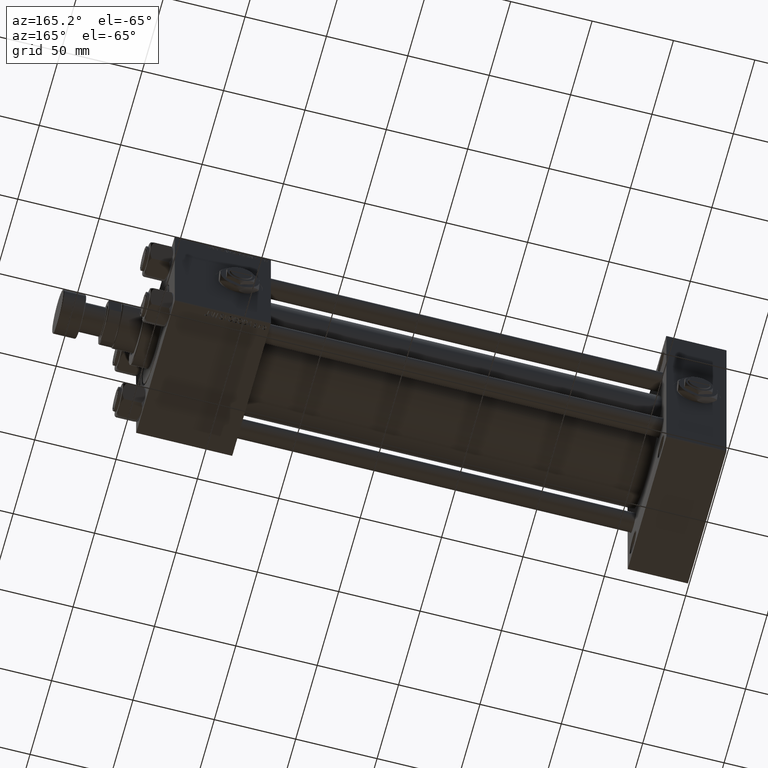
[diagram: clean part render]
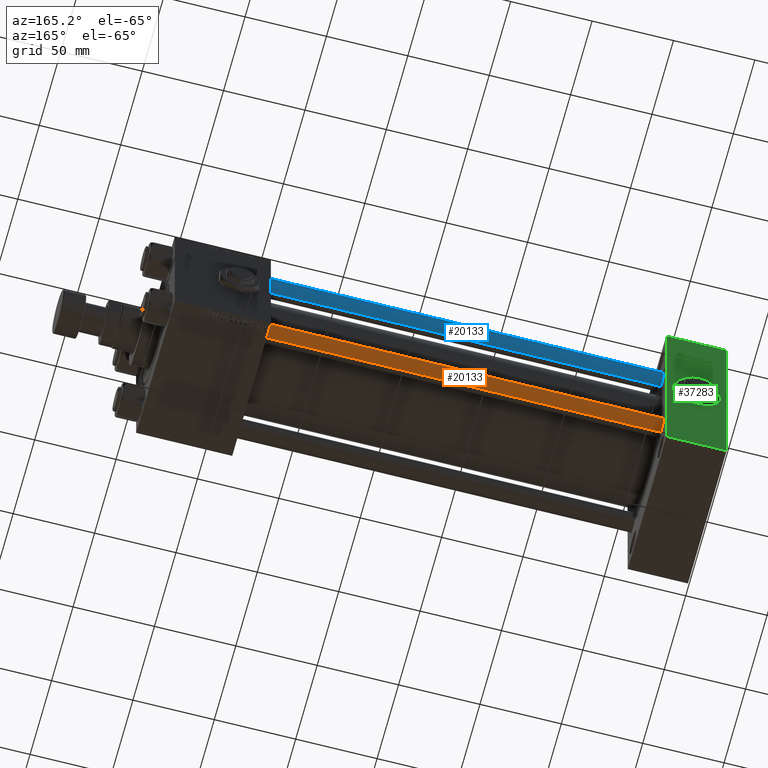
[diagram: same view with three faces highlighted in distinct colors, each labeled with its STEP entity id]
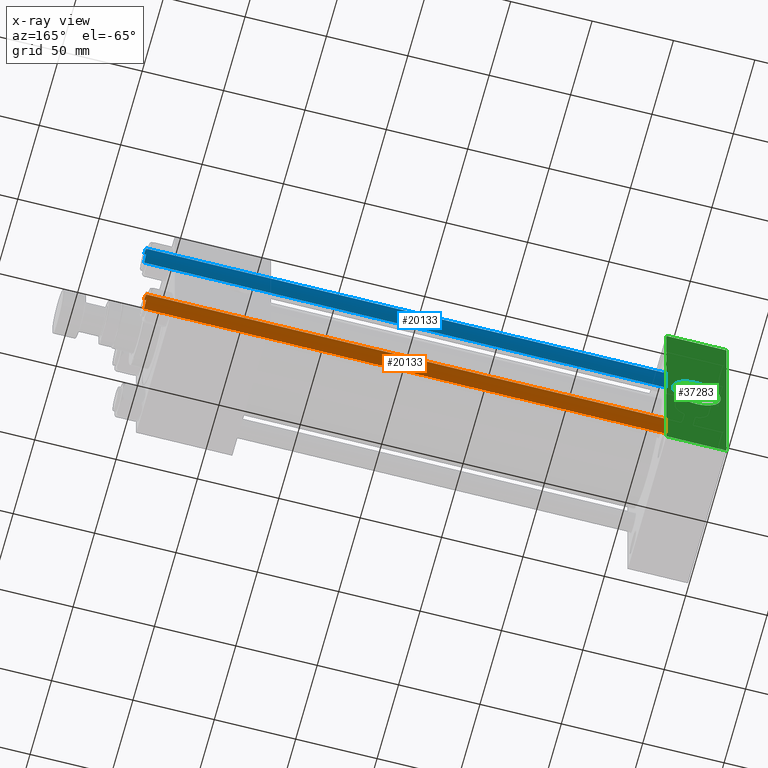
[diagram: x-ray of the same camera — body ghosted, the three highlighted faces saturated]
A machine part, auxiliary view with three faces highlighted in distinct colors.
The next image is the same camera in x-ray (body ghosted, the three faces saturated) — at least one of them is partly hidden behind the body in this view.
Their STEP definitions:

[orange] entity #20133 — the highlighted cylindrical surface (edge-blend (fillet) strip) has radius 6 mm, axis along (-1, 0, 0).
#735 = LINE ( 'NONE', #40889, #45783 ) ;
#988 = VERTEX_POINT ( 'NONE', #49288 ) ;
#3000 = ORIENTED_EDGE ( 'NONE', *, *, #44713, .T. ) ;
#4490 = VERTEX_POINT ( 'NONE', #44298 ) ;
#5597 = ORIENTED_EDGE ( 'NONE', *, *, #52544, .T. ) ;
#5613 = DIRECTION ( 'NONE',  ( -0.000000000000000000, -0.000000000000000000, -1.000000000000000000 ) ) ;
#6590 = CARTESIAN_POINT ( 'NONE',  ( 6.000000000000000888, 7.347880794884120722E-16, 349.5000000000000568 ) ) ;
#7279 = VECTOR ( 'NONE', #30749, 1000.000000000000000 ) ;
#8762 = ORIENTED_EDGE ( 'NONE', *, *, #23817, .F. ) ;
#11911 = DIRECTION ( 'NONE',  ( -0.000000000000000000, -0.000000000000000000, -1.000000000000000000 ) ) ;
#13798 = DIRECTION ( 'NONE',  ( -0.000000000000000000, -0.000000000000000000, 1.000000000000000000 ) ) ;
#19318 = CARTESIAN_POINT ( 'NONE',  ( 6.000000000000000888, 7.347880794884120722E-16, 350.0000000000000000 ) ) ;
#20133 = ADVANCED_FACE ( 'NONE', ( #38051 ), #21302, .T. ) ;
#20943 = CARTESIAN_POINT ( 'NONE',  ( 0.000000000000000000, 0.000000000000000000, 349.5000000000000568 ) ) ;
#21302 = CYLINDRICAL_SURFACE ( 'NONE', #35192, 6.000000000000000888 ) ;
#21463 = DIRECTION ( 'NONE',  ( 1.000000000000000000, 0.000000000000000000, 0.000000000000000000 ) ) ;
#23330 = CARTESIAN_POINT ( 'NONE',  ( -6.000000000000000888, 0.000000000000000000, 0.4999999999999449329 ) ) ;
#23817 = EDGE_CURVE ( 'NONE', #33579, #988, #43262, .T. ) ;
#25504 = CARTESIAN_POINT ( 'NONE',  ( 0.000000000000000000, 0.000000000000000000, 0.4999999999999449329 ) ) ;
#27031 = AXIS2_PLACEMENT_3D ( 'NONE', #25504, #13798, #41727 ) ;
#29662 = EDGE_CURVE ( 'NONE', #33686, #988, #38057, .T. ) ;
#30156 = EDGE_LOOP ( 'NONE', ( #8762, #3000, #5597, #39017 ) ) ;
#30749 = DIRECTION ( 'NONE',  ( -0.000000000000000000, -0.000000000000000000, -1.000000000000000000 ) ) ;
#33579 = VERTEX_POINT ( 'NONE', #6590 ) ;
#33686 = VERTEX_POINT ( 'NONE', #23330 ) ;
#34320 = DIRECTION ( 'NONE',  ( -1.000000000000000000, 0.000000000000000000, 0.000000000000000000 ) ) ;
#35192 = AXIS2_PLACEMENT_3D ( 'NONE', #37521, #5613, #34320 ) ;
#37521 = CARTESIAN_POINT ( 'NONE',  ( 0.000000000000000000, 0.000000000000000000, 350.0000000000000000 ) ) ;
#38051 = FACE_OUTER_BOUND ( 'NONE', #30156, .T. ) ;
#38057 = CIRCLE ( 'NONE', #27031, 6.000000000000000888 ) ;
#38731 = AXIS2_PLACEMENT_3D ( 'NONE', #20943, #49637, #21463 ) ;
#39017 = ORIENTED_EDGE ( 'NONE', *, *, #29662, .T. ) ;
#40889 = CARTESIAN_POINT ( 'NONE',  ( -6.000000000000000888, 0.000000000000000000, 350.0000000000000000 ) ) ;
#41727 = DIRECTION ( 'NONE',  ( 1.000000000000000000, 0.000000000000000000, 0.000000000000000000 ) ) ;
#43262 = LINE ( 'NONE', #19318, #7279 ) ;
#44298 = CARTESIAN_POINT ( 'NONE',  ( -6.000000000000000888, 0.000000000000000000, 349.5000000000000568 ) ) ;
#44713 = EDGE_CURVE ( 'NONE', #33579, #4490, #52293, .T. ) ;
#45783 = VECTOR ( 'NONE', #11911, 1000.000000000000000 ) ;
#49288 = CARTESIAN_POINT ( 'NONE',  ( 6.000000000000000888, 7.347880794884120722E-16, 0.4999999999999449329 ) ) ;
#49637 = DIRECTION ( 'NONE',  ( 0.000000000000000000, 0.000000000000000000, -1.000000000000000000 ) ) ;
#52293 = CIRCLE ( 'NONE', #38731, 6.000000000000000888 ) ;
#52544 = EDGE_CURVE ( 'NONE', #4490, #33686, #735, .T. ) ;

[blue] entity #20133 — the highlighted cylindrical surface (edge-blend (fillet) strip) has radius 6 mm, axis along (1, 0, 0).
#735 = LINE ( 'NONE', #40889, #45783 ) ;
#988 = VERTEX_POINT ( 'NONE', #49288 ) ;
#3000 = ORIENTED_EDGE ( 'NONE', *, *, #44713, .T. ) ;
#4490 = VERTEX_POINT ( 'NONE', #44298 ) ;
#5597 = ORIENTED_EDGE ( 'NONE', *, *, #52544, .T. ) ;
#5613 = DIRECTION ( 'NONE',  ( -0.000000000000000000, -0.000000000000000000, -1.000000000000000000 ) ) ;
#6590 = CARTESIAN_POINT ( 'NONE',  ( 6.000000000000000888, 7.347880794884120722E-16, 349.5000000000000568 ) ) ;
#7279 = VECTOR ( 'NONE', #30749, 1000.000000000000000 ) ;
#8762 = ORIENTED_EDGE ( 'NONE', *, *, #23817, .F. ) ;
#11911 = DIRECTION ( 'NONE',  ( -0.000000000000000000, -0.000000000000000000, -1.000000000000000000 ) ) ;
#13798 = DIRECTION ( 'NONE',  ( -0.000000000000000000, -0.000000000000000000, 1.000000000000000000 ) ) ;
#19318 = CARTESIAN_POINT ( 'NONE',  ( 6.000000000000000888, 7.347880794884120722E-16, 350.0000000000000000 ) ) ;
#20133 = ADVANCED_FACE ( 'NONE', ( #38051 ), #21302, .T. ) ;
#20943 = CARTESIAN_POINT ( 'NONE',  ( 0.000000000000000000, 0.000000000000000000, 349.5000000000000568 ) ) ;
#21302 = CYLINDRICAL_SURFACE ( 'NONE', #35192, 6.000000000000000888 ) ;
#21463 = DIRECTION ( 'NONE',  ( 1.000000000000000000, 0.000000000000000000, 0.000000000000000000 ) ) ;
#23330 = CARTESIAN_POINT ( 'NONE',  ( -6.000000000000000888, 0.000000000000000000, 0.4999999999999449329 ) ) ;
#23817 = EDGE_CURVE ( 'NONE', #33579, #988, #43262, .T. ) ;
#25504 = CARTESIAN_POINT ( 'NONE',  ( 0.000000000000000000, 0.000000000000000000, 0.4999999999999449329 ) ) ;
#27031 = AXIS2_PLACEMENT_3D ( 'NONE', #25504, #13798, #41727 ) ;
#29662 = EDGE_CURVE ( 'NONE', #33686, #988, #38057, .T. ) ;
#30156 = EDGE_LOOP ( 'NONE', ( #8762, #3000, #5597, #39017 ) ) ;
#30749 = DIRECTION ( 'NONE',  ( -0.000000000000000000, -0.000000000000000000, -1.000000000000000000 ) ) ;
#33579 = VERTEX_POINT ( 'NONE', #6590 ) ;
#33686 = VERTEX_POINT ( 'NONE', #23330 ) ;
#34320 = DIRECTION ( 'NONE',  ( -1.000000000000000000, 0.000000000000000000, 0.000000000000000000 ) ) ;
#35192 = AXIS2_PLACEMENT_3D ( 'NONE', #37521, #5613, #34320 ) ;
#37521 = CARTESIAN_POINT ( 'NONE',  ( 0.000000000000000000, 0.000000000000000000, 350.0000000000000000 ) ) ;
#38051 = FACE_OUTER_BOUND ( 'NONE', #30156, .T. ) ;
#38057 = CIRCLE ( 'NONE', #27031, 6.000000000000000888 ) ;
#38731 = AXIS2_PLACEMENT_3D ( 'NONE', #20943, #49637, #21463 ) ;
#39017 = ORIENTED_EDGE ( 'NONE', *, *, #29662, .T. ) ;
#40889 = CARTESIAN_POINT ( 'NONE',  ( -6.000000000000000888, 0.000000000000000000, 350.0000000000000000 ) ) ;
#41727 = DIRECTION ( 'NONE',  ( 1.000000000000000000, 0.000000000000000000, 0.000000000000000000 ) ) ;
#43262 = LINE ( 'NONE', #19318, #7279 ) ;
#44298 = CARTESIAN_POINT ( 'NONE',  ( -6.000000000000000888, 0.000000000000000000, 349.5000000000000568 ) ) ;
#44713 = EDGE_CURVE ( 'NONE', #33579, #4490, #52293, .T. ) ;
#45783 = VECTOR ( 'NONE', #11911, 1000.000000000000000 ) ;
#49288 = CARTESIAN_POINT ( 'NONE',  ( 6.000000000000000888, 7.347880794884120722E-16, 0.4999999999999449329 ) ) ;
#49637 = DIRECTION ( 'NONE',  ( 0.000000000000000000, 0.000000000000000000, -1.000000000000000000 ) ) ;
#52293 = CIRCLE ( 'NONE', #38731, 6.000000000000000888 ) ;
#52544 = EDGE_CURVE ( 'NONE', #4490, #33686, #735, .T. ) ;

[green] entity #37283 — the highlighted planar face has unit normal (0, 1, 0).
#399 = VERTEX_POINT ( 'NONE', #17313 ) ;
#2091 = ORIENTED_EDGE ( 'NONE', *, *, #12372, .F. ) ;
#2225 = EDGE_CURVE ( 'NONE', #38110, #8912, #29675, .T. ) ;
#2871 = EDGE_CURVE ( 'NONE', #399, #38110, #46765, .T. ) ;
#4561 = VECTOR ( 'NONE', #49938, 1000.000000000000000 ) ;
#4596 = AXIS2_PLACEMENT_3D ( 'NONE', #7536, #31734, #11018 ) ;
#5234 = DIRECTION ( 'NONE',  ( 0.000000000000000000, 0.000000000000000000, 1.000000000000000000 ) ) ;
#5485 = VECTOR ( 'NONE', #30203, 1000.000000000000000 ) ;
#5548 = CARTESIAN_POINT ( 'NONE',  ( 37.00000000000000000, 45.00000000000000711, 70.50000000000000000 ) ) ;
#6000 = CARTESIAN_POINT ( 'NONE',  ( 37.00000000000000000, 45.00000000000000711, 71.00000000000000000 ) ) ;
#6937 = EDGE_CURVE ( 'NONE', #399, #37664, #51552, .T. ) ;
#7536 = CARTESIAN_POINT ( 'NONE',  ( 37.00000000000000000, 45.00000000000000711, 71.00000000000000000 ) ) ;
#8790 = VECTOR ( 'NONE', #40592, 1000.000000000000000 ) ;
#8912 = VERTEX_POINT ( 'NONE', #52195 ) ;
#9753 = CARTESIAN_POINT ( 'NONE',  ( 18.50000000000000000, 45.00000000000000711, 0.000000000000000000 ) ) ;
#11018 = DIRECTION ( 'NONE',  ( 0.000000000000000000, -0.000000000000000000, 1.000000000000000000 ) ) ;
#11874 = LINE ( 'NONE', #31555, #8790 ) ;
#12372 = EDGE_CURVE ( 'NONE', #14051, #15882, #33316, .T. ) ;
#14051 = VERTEX_POINT ( 'NONE', #16039 ) ;
#15436 = ORIENTED_EDGE ( 'NONE', *, *, #15464, .T. ) ;
#15464 = EDGE_CURVE ( 'NONE', #8912, #37664, #11874, .T. ) ;
#15882 = VERTEX_POINT ( 'NONE', #36540 ) ;
#16039 = CARTESIAN_POINT ( 'NONE',  ( 18.50000000000000000, 45.00000000000000711, 15.00000000000000178 ) ) ;
#17313 = CARTESIAN_POINT ( 'NONE',  ( 0.000000000000000000, 45.00000000000000711, 70.50000000000000000 ) ) ;
#18069 = AXIS2_PLACEMENT_3D ( 'NONE', #33404, #33157, #49614 ) ;
#19581 = ORIENTED_EDGE ( 'NONE', *, *, #6937, .F. ) ;
#21096 = AXIS2_PLACEMENT_3D ( 'NONE', #9753, #21734, #5234 ) ;
#21734 = DIRECTION ( 'NONE',  ( 0.000000000000000000, 1.000000000000000000, 0.000000000000000000 ) ) ;
#29675 = LINE ( 'NONE', #6000, #5485 ) ;
#29854 = EDGE_CURVE ( 'NONE', #15882, #14051, #51635, .T. ) ;
#30203 = DIRECTION ( 'NONE',  ( 0.000000000000000000, 0.000000000000000000, -1.000000000000000000 ) ) ;
#31364 = DIRECTION ( 'NONE',  ( 0.000000000000000000, 0.000000000000000000, -1.000000000000000000 ) ) ;
#31555 = CARTESIAN_POINT ( 'NONE',  ( 37.00000000000000000, 45.00000000000000711, -70.49999999999997158 ) ) ;
#31734 = DIRECTION ( 'NONE',  ( -0.000000000000000000, 1.000000000000000000, 0.000000000000000000 ) ) ;
#32273 = FACE_BOUND ( 'NONE', #35095, .T. ) ;
#33157 = DIRECTION ( 'NONE',  ( 0.000000000000000000, 1.000000000000000000, 0.000000000000000000 ) ) ;
#33316 = CIRCLE ( 'NONE', #18069, 15.00000000000000178 ) ;
#33404 = CARTESIAN_POINT ( 'NONE',  ( 18.50000000000000000, 45.00000000000000711, 0.000000000000000000 ) ) ;
#33639 = EDGE_LOOP ( 'NONE', ( #46912, #15436, #19581, #50932 ) ) ;
#35095 = EDGE_LOOP ( 'NONE', ( #2091, #52116 ) ) ;
#36540 = CARTESIAN_POINT ( 'NONE',  ( 18.50000000000000355, 45.00000000000000711, -15.00000000000000178 ) ) ;
#37283 = ADVANCED_FACE ( 'NONE', ( #32273, #43979 ), #44504, .T. ) ;
#37664 = VERTEX_POINT ( 'NONE', #41742 ) ;
#38110 = VERTEX_POINT ( 'NONE', #50916 ) ;
#40592 = DIRECTION ( 'NONE',  ( -1.000000000000000000, 0.000000000000000000, 0.000000000000000000 ) ) ;
#41742 = CARTESIAN_POINT ( 'NONE',  ( 0.000000000000000000, 45.00000000000000711, -70.49999999999997158 ) ) ;
#42487 = VECTOR ( 'NONE', #31364, 1000.000000000000000 ) ;
#43979 = FACE_OUTER_BOUND ( 'NONE', #33639, .T. ) ;
#44504 = PLANE ( 'NONE',  #4596 ) ;
#46765 = LINE ( 'NONE', #5548, #4561 ) ;
#46805 = CARTESIAN_POINT ( 'NONE',  ( 0.000000000000000000, 45.00000000000000711, 71.00000000000000000 ) ) ;
#46912 = ORIENTED_EDGE ( 'NONE', *, *, #2225, .T. ) ;
#49614 = DIRECTION ( 'NONE',  ( 0.000000000000000000, 0.000000000000000000, 1.000000000000000000 ) ) ;
#49938 = DIRECTION ( 'NONE',  ( 1.000000000000000000, 0.000000000000000000, 0.000000000000000000 ) ) ;
#50916 = CARTESIAN_POINT ( 'NONE',  ( 37.00000000000000000, 45.00000000000000711, 70.50000000000000000 ) ) ;
#50932 = ORIENTED_EDGE ( 'NONE', *, *, #2871, .T. ) ;
#51552 = LINE ( 'NONE', #46805, #42487 ) ;
#51635 = CIRCLE ( 'NONE', #21096, 15.00000000000000178 ) ;
#52116 = ORIENTED_EDGE ( 'NONE', *, *, #29854, .F. ) ;
#52195 = CARTESIAN_POINT ( 'NONE',  ( 37.00000000000000000, 45.00000000000000711, -70.49999999999997158 ) ) ;